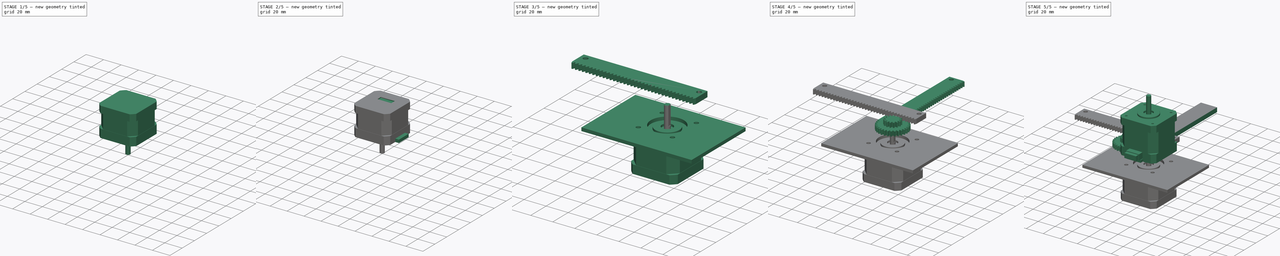
[diagram: build sequence overview — one tinted view per stage of 5, left to right]
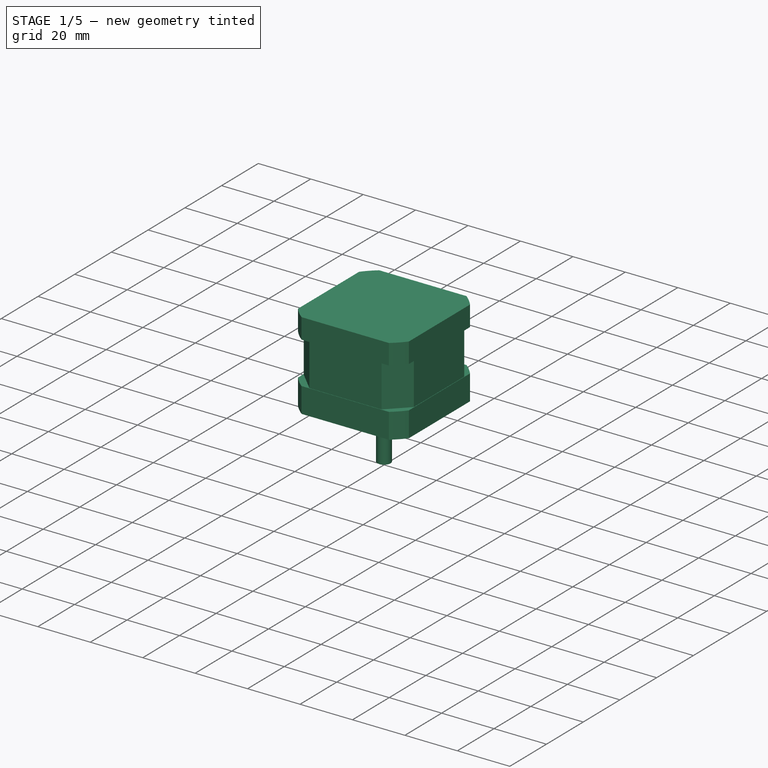
[diagram: stage 1 of 5 — iso view after this stage's code; geometry added in this stage tinted green]
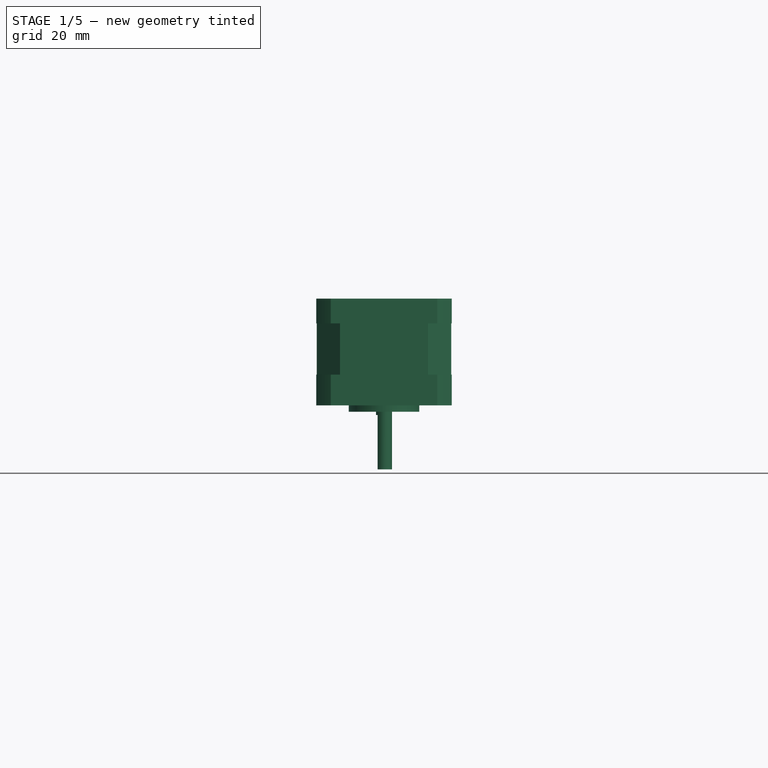
[diagram: stage 1 of 5 — front view after this stage's code; geometry added in this stage tinted green]
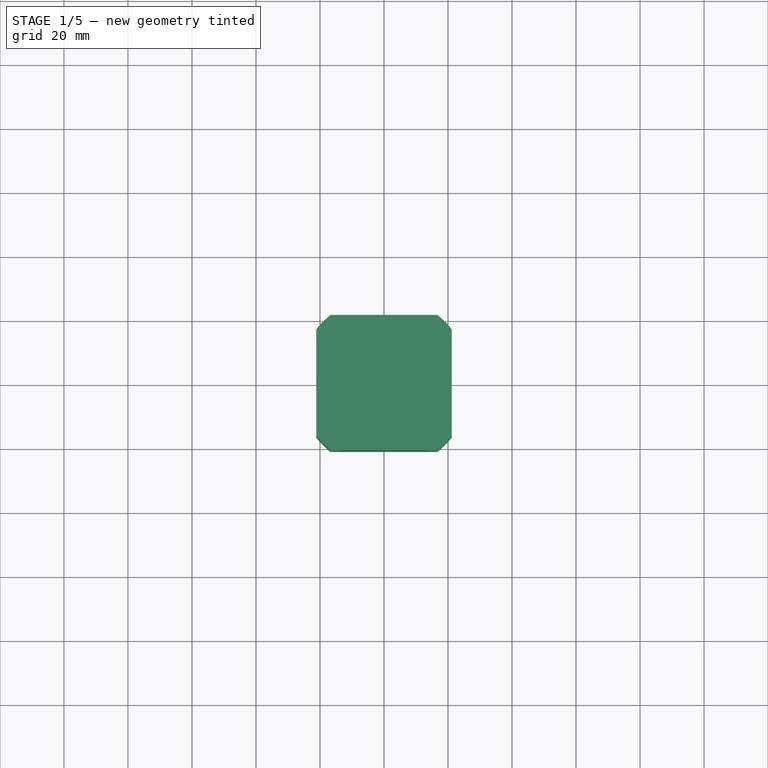
[diagram: stage 1 of 5 — top view after this stage's code; geometry added in this stage tinted green]
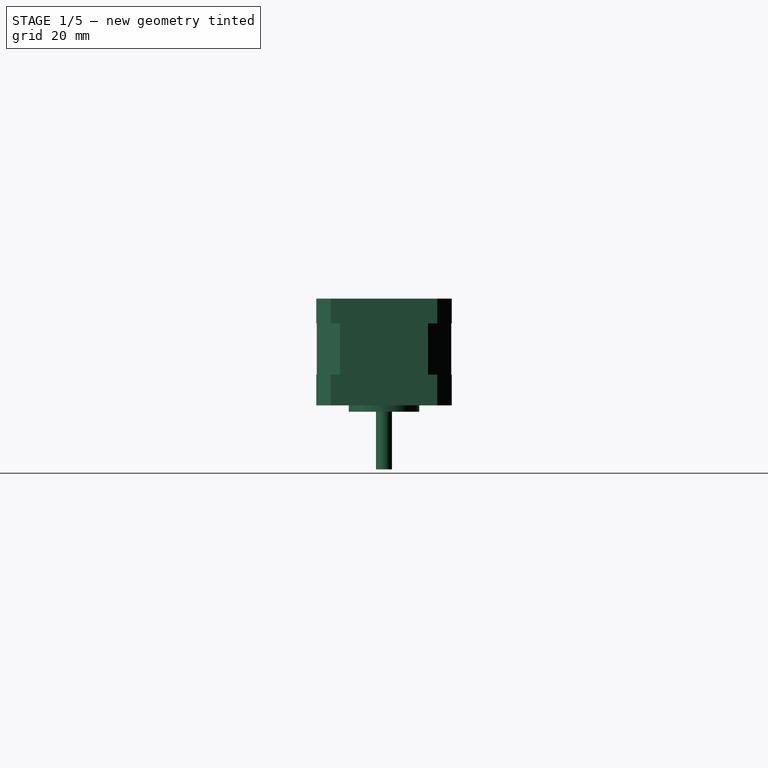
[diagram: stage 1 of 5 — right view after this stage's code; geometry added in this stage tinted green]
FCSTD DOCUMENT  (FreeCAD 0.18.4R)
Label: gears
License: All rights reserved
LicenseURL: http://en.wikipedia.org/wiki/All_rights_reserved
objects: Sketcher::SketchObject×13, Part::FeaturePython×9, PartDesign::Pad×8, Path::FeaturePython×8, Part::Cut×6, PartDesign::Body×6, PartDesign::Pocket×5, Part::Cylinder×4, Part::MultiFuse×4, App::DocumentObjectGroup×3, Part::Feature×2, App::FeaturePython×2, Path::FeatureCompoundPython×2, App::Part×2, Part::Compound×1, Part::Box×1, Part::Chamfer×1, PartDesign::FeatureBase×1
note: 76 computed .brp shape members not serialized (recipe doc carries the construction recipe); baked Part::Feature solids carry a one-line shape summary decoded from their .brp

FEATURE [Sketcher::SketchObject] Sketch  label="bottom-part-sketch"
  MapMode = 5
  Support = -> [XY_Plane003]
  sketch-geometry (8):
    g0: LineSegment StartX=-16.65 StartY=-21.15 StartZ=0 EndX=16.65 EndY=-21.15 EndZ=0
    g1: LineSegment StartX=21.15 StartY=-16.65 StartZ=0 EndX=21.15 EndY=16.65 EndZ=0
    g2: LineSegment StartX=16.65 StartY=21.15 StartZ=0 EndX=-16.65 EndY=21.15 EndZ=0
    g3: LineSegment StartX=-21.15 StartY=16.65 StartZ=0 EndX=-21.15 EndY=-16.65 EndZ=0
    g4: ArcOfCircle CenterX=0 CenterY=0 CenterZ=0 NormalX=0 NormalY=0 NormalZ=1 AngleXU=0 Radius=26.9174 StartAngle=2.2377 EndAngle=2.47468
    g5: ArcOfCircle CenterX=0 CenterY=0 CenterZ=0 NormalX=0 NormalY=0 NormalZ=1 AngleXU=0 Radius=26.9174 StartAngle=3.8085 EndAngle=4.04548
    g6: ArcOfCircle CenterX=0 CenterY=0 CenterZ=0 NormalX=0 NormalY=0 NormalZ=1 AngleXU=0 Radius=26.9174 StartAngle=5.3793 EndAngle=5.61628
    g7: ArcOfCircle CenterX=0 CenterY=0 CenterZ=0 NormalX=0 NormalY=0 NormalZ=1 AngleXU=0 Radius=26.9174 StartAngle=0.666908 EndAngle=0.903888
  constraints (29):
    c: Horizontal(g0)
    c: Horizontal(g2)
    c: Vertical(g1)
    c: Vertical(g3)
    c: PointOnObject(g0,g4)
    c: PointOnObject(g0,g4)
    c: PointOnObject(g1,g4)
    c: PointOnObject(g1,g4)
    c: Coincident(g4,g2)
    c: Coincident(g7,g2)
    c: Equal(g4,g5)
    c: Coincident(g4,g3)
    c: Coincident(g5,g3)
    c: Coincident(g4,g5)
    c: Equal(g5,g6)
    c: PointOnObject(g5,g0)
    c: PointOnObject(g6,g0)
    c: Coincident(g5,g6)
    c: Equal(g6,g7)
    c: PointOnObject(g6,g1)
    c: PointOnObject(g7,g1)
    c: Coincident(g6,g7)
    c: Equal(g3,g2)
    c: Equal(g2,g1)
    c: Equal(g1,g0)
    c: DistanceX(g3,g1) = 42.3
    c: DistanceX(g2) = -33.3
    c: DistanceY(g2) = 21.15
    c: DistanceX(g1) = 21.15
FEATURE [PartDesign::Pad] Pad  label="bottom-slice"
  Length = 9.6
  Length2 = 100
  Profile = -> Sketch
  Type = 0
FEATURE [Sketcher::SketchObject] Sketch001  label="middle-part-sketch"
  ExternalGeometry = -> [Pad]
  MapMode = 5
  Placement = pos=(0,0,9.6) rot=(0,0,1;0rad)
  Support = -> [Pad]
  sketch-geometry (9):
    g0: LineSegment StartX=-21 StartY=-13.75 StartZ=0 EndX=-21 EndY=13.75 EndZ=0
    g1: LineSegment StartX=-21 StartY=13.75 StartZ=0 EndX=-13.75 EndY=21 EndZ=0
    g2: LineSegment StartX=-13.75 StartY=21 StartZ=0 EndX=13.75 EndY=21 EndZ=0
    g3: LineSegment [constr] StartX=-21 StartY=13.75 StartZ=0 EndX=-9 EndY=13.75 EndZ=0
    g4: LineSegment StartX=13.75 StartY=21 StartZ=0 EndX=21 EndY=13.75 EndZ=0
    g5: LineSegment StartX=21 StartY=13.75 StartZ=0 EndX=21 EndY=-13.75 EndZ=0
    g6: LineSegment StartX=21 StartY=-13.75 StartZ=0 EndX=13.75 EndY=-21 EndZ=0
    g7: LineSegment StartX=13.75 StartY=-21 StartZ=0 EndX=-13.75 EndY=-21 EndZ=0
    g8: LineSegment StartX=-13.75 StartY=-21 StartZ=0 EndX=-21 EndY=-13.75 EndZ=0
  constraints (24):
    c: Coincident(g0,g1)
    c: Coincident(g1,g2)
    c: Horizontal(g2)
    c: Symmetric(g0,g0,g-1)
    c: Symmetric(g1,g2,g-2)
    c: Horizontal(g3)
    c: Coincident(g3,g0)
    c: DistanceX(g3) = 12
    c: Angle(g3,g1) = 0.785398
    c: DistanceY(g0) = 27.5
    c: Coincident(g4,g5)
    c: Vertical(g5)
    c: Coincident(g5,g6)
    c: Coincident(g6,g7)
    c: Horizontal(g7)
    c: Coincident(g7,g8)
    c: Coincident(g8,g0)
    c: Symmetric(g1,g7,g-1)
    c: Coincident(g4,g2)
    c: Symmetric(g4,g0,g-2)
    c: Symmetric(g0,g5,g-2)
    c: Symmetric(g6,g7,g-2)
    c: DistanceX(g-1,g0) = -21
    c: Equal(g0,g2)
FEATURE [PartDesign::Pad] Pad001  label="middle-slice"
  BaseFeature = -> Pad
  Length = 16
  Length2 = 100
  Profile = -> Sketch001
  Type = 0
FEATURE [Sketcher::SketchObject] Sketch002  label="top-part-sketch"
  MapMode = 5
  Placement = pos=(0,0,25.6) rot=(0,0,1;0rad)
  Support = -> [Pad001]
  sketch-geometry (8):
    g0: LineSegment StartX=-16.65 StartY=-21.15 StartZ=0 EndX=16.65 EndY=-21.15 EndZ=0
    g1: LineSegment StartX=21.15 StartY=-16.65 StartZ=0 EndX=21.15 EndY=16.65 EndZ=0
    g2: LineSegment StartX=16.65 StartY=21.15 StartZ=0 EndX=-16.65 EndY=21.15 EndZ=0
    g3: LineSegment StartX=-21.15 StartY=16.65 StartZ=0 EndX=-21.15 EndY=-16.65 EndZ=0
    g4: ArcOfCircle CenterX=0 CenterY=0 CenterZ=0 NormalX=0 NormalY=0 NormalZ=1 AngleXU=0 Radius=26.9174 StartAngle=2.2377 EndAngle=2.47468
    g5: ArcOfCircle CenterX=0 CenterY=0 CenterZ=0 NormalX=0 NormalY=0 NormalZ=1 AngleXU=0 Radius=26.9174 StartAngle=3.8085 EndAngle=4.04548
    g6: ArcOfCircle CenterX=0 CenterY=0 CenterZ=0 NormalX=0 NormalY=0 NormalZ=1 AngleXU=0 Radius=26.9174 StartAngle=5.3793 EndAngle=5.61628
    g7: ArcOfCircle CenterX=0 CenterY=0 CenterZ=0 NormalX=0 NormalY=0 NormalZ=1 AngleXU=0 Radius=26.9174 StartAngle=0.666908 EndAngle=0.903888
  constraints (29):
    c: Horizontal(g0)
    c: Horizontal(g2)
    c: Vertical(g1)
    c: Vertical(g3)
    c: PointOnObject(g0,g4)
    c: PointOnObject(g0,g4)
    c: PointOnObject(g1,g4)
    c: PointOnObject(g1,g4)
    c: Coincident(g4,g2)
    c: Coincident(g7,g2)
    c: Equal(g4,g5)
    c: Coincident(g4,g3)
    c: Coincident(g5,g3)
    c: Coincident(g4,g5)
    c: Equal(g5,g6)
    c: PointOnObject(g5,g0)
    c: PointOnObject(g6,g0)
    c: Coincident(g5,g6)
    c: Equal(g6,g7)
    c: PointOnObject(g6,g1)
    c: PointOnObject(g7,g1)
    c: Coincident(g6,g7)
    c: Equal(g3,g2)
    c: Equal(g2,g1)
    c: Equal(g1,g0)
    c: DistanceX(g3,g1) = 42.3
    c: DistanceX(g2) = -33.3
    c: DistanceY(g2) = 21.15
    c: DistanceX(g1) = 21.15
FEATURE [PartDesign::Pad] Pad002  label="top-slice"
  BaseFeature = -> Pad001
  Length = 7.75
  Length2 = 100
  Profile = -> Sketch002
  Type = 0
FEATURE [Sketcher::SketchObject] Sketch003  label="top-drills-sketch"
  MapMode = 5
  Placement = pos=(0,0,0) rot=(1,0,0;3.14159rad)
  Support = -> [Pad002]
  sketch-geometry (6):
    g0: LineSegment [constr] StartX=-15.5 StartY=15.5 StartZ=0 EndX=15.5 EndY=15.5 EndZ=0
    g1: LineSegment [constr] StartX=-15.5 StartY=15.5 StartZ=0 EndX=-15.5 EndY=-15.5 EndZ=0
    g2: Circle CenterX=-15.5 CenterY=15.5 CenterZ=0 NormalX=0 NormalY=0 NormalZ=1 AngleXU=0 Radius=1.225
    g3: Circle CenterX=15.5 CenterY=15.5 CenterZ=0 NormalX=0 NormalY=0 NormalZ=1 AngleXU=0 Radius=1.225
    g4: Circle CenterX=15.5 CenterY=-15.5 CenterZ=0 NormalX=0 NormalY=0 NormalZ=1 AngleXU=0 Radius=1.225
    g5: Circle CenterX=-15.5 CenterY=-15.5 CenterZ=0 NormalX=0 NormalY=0 NormalZ=1 AngleXU=0 Radius=1.225
  constraints (15):
    c: Horizontal(g0)
    c: Symmetric(g0,g0,g-2)
    c: Vertical(g1)
    c: Symmetric(g1,g1,g-1)
    c: Equal(g0,g1)
    c: DistanceX(g0) = 31
    c: Coincident(g1,g0)
    c: Radius(g2) = 1.225
    c: Coincident(g2,g0)
    c: Equal(g5,g4)
    c: Equal(g4,g3)
    c: Equal(g3,g2)
    c: Coincident(g3,g0)
    c: Coincident(g5,g1)
    c: Symmetric(g4,g1,g-2)
FEATURE [PartDesign::Pocket] Pocket  label="top-drills"
  BaseFeature = -> Pad002
  Length = 4.5
  Length2 = 100
  Profile = -> Sketch003
  Type = 0
FEATURE [Sketcher::SketchObject] Sketch004  label="shaft-base-sketch"
  MapMode = 5
  Placement = pos=(0,0,0) rot=(1,0,0;3.14159rad)
  Support = -> [Pocket]
  sketch-geometry (2):
    g0: Circle CenterX=0 CenterY=0 CenterZ=0 NormalX=0 NormalY=0 NormalZ=1 AngleXU=0 Radius=11
    g1: Circle CenterX=0 CenterY=0 CenterZ=0 NormalX=0 NormalY=0 NormalZ=1 AngleXU=0 Radius=5
  constraints (4):
    c: Coincident(g0,g-1)
    c: Radius(g0) = 11
    c: Coincident(g1,g-1)
    c: Radius(g1) = 5
FEATURE [PartDesign::Pad] Pad003  label="shaft-base"
  BaseFeature = -> Pocket
  Length = 2
  Length2 = 100
  Profile = -> Sketch004
  Type = 0
FEATURE [Sketcher::SketchObject] Sketch005  label="shaft-1-sketch"
  MapMode = 5
  Placement = pos=(0,0,0) rot=(1,0,0;3.14159rad)
  Support = -> [Pad003]
  sketch-geometry (1):
    g0: Circle CenterX=0 CenterY=0 CenterZ=0 NormalX=0 NormalY=0 NormalZ=1 AngleXU=0 Radius=2.5
  constraints (2):
    c: Coincident(g0,g-1)
    c: Radius(g0) = 2.5
FEATURE [PartDesign::Pad] Pad004  label="shaft-1"
  BaseFeature = -> Pad003
  Length = 20
  Length2 = 100
  Profile = -> Sketch005
  Type = 0
FEATURE [Sketcher::SketchObject] Sketch006  label="shaft-2-sketch"
  ExternalGeometry = -> [Pad004]
  MapMode = 5
  Placement = pos=(0,0,-20) rot=(1,0,0;3.14159rad)
  Support = -> [Pad004]
  sketch-geometry (4):
    g0: LineSegment StartX=-2 StartY=1.5 StartZ=0 EndX=-2 EndY=-1.5 EndZ=0
    g1: LineSegment StartX=-2 StartY=1.5 StartZ=0 EndX=-2.5 EndY=1.5 EndZ=0
    g2: LineSegment StartX=-2.5 StartY=1.5 StartZ=0 EndX=-2.5 EndY=-1.5 EndZ=0
    g3: LineSegment StartX=-2.5 StartY=-1.5 StartZ=0 EndX=-2 EndY=-1.5 EndZ=0
  constraints (11):
    c: Symmetric(g0,g0,g-1)
    c: PointOnObject(g0,g-3)
    c: Coincident(g1,g2)
    c: Coincident(g2,g3)
    c: Horizontal(g3)
    c: Horizontal(g1)
    c: Coincident(g1,g0)
    c: Coincident(g0,g3)
    c: Vertical(g2)
    c: Tangent(g2,g-3)
    c: DistanceX(g1) = -0.5
FEATURE [PartDesign::Pocket] Pocket001  label="shaft-2"
  BaseFeature = -> Pad004
  Length = 17
  Length2 = 100
  Profile = -> Sketch006
  Type = 0
FEATURE [Sketcher::SketchObject] Sketch007  label="bottom-drills-sketch"
  MapMode = 5
  Placement = pos=(0,0,25.6) rot=(1,0,0;3.14159rad)
  Support = -> [Pocket001]
  sketch-geometry (7):
    g0: LineSegment [constr] StartX=-15.5 StartY=15.5 StartZ=0 EndX=15.5 EndY=15.5 EndZ=0
    g1: LineSegment [constr] StartX=-15.5 StartY=15.5 StartZ=0 EndX=-15.5 EndY=-15.5 EndZ=0
    g2: Circle CenterX=-15.5 CenterY=15.5 CenterZ=0 NormalX=0 NormalY=0 NormalZ=1 AngleXU=0 Radius=1.5
    g3: Circle CenterX=15.5 CenterY=15.5 CenterZ=0 NormalX=0 NormalY=0 NormalZ=1 AngleXU=0 Radius=1.5
    g4: Circle CenterX=15.5 CenterY=-15.5 CenterZ=0 NormalX=0 NormalY=0 NormalZ=1 AngleXU=0 Radius=1.5
    g5: Circle CenterX=-15.5 CenterY=-15.5 CenterZ=0 NormalX=0 NormalY=0 NormalZ=1 AngleXU=0 Radius=1.5
    g6: Circle CenterX=0 CenterY=0 CenterZ=0 NormalX=0 NormalY=0 NormalZ=1 AngleXU=0 Radius=4.5
  constraints (17):
    c: Horizontal(g0)
    c: Vertical(g1)
    c: Coincident(g1,g0)
    c: Symmetric(g0,g0,g-2)
    c: Symmetric(g0,g1,g-1)
    c: Equal(g1,g0)
    c: DistanceX(g0) = 31
    c: Coincident(g2,g0)
    c: Radius(g2) = 1.5
    c: Coincident(g5,g1)
    c: Coincident(g0,g3)
    c: Equal(g3,g2)
    c: Equal(g2,g5)
    c: Equal(g5,g4)
    c: Symmetric(g4,g1,g-2)
    c: Coincident(g6,g-1)
    c: Radius(g6) = 4.5
FEATURE [PartDesign::Pocket] Pocket002  label="bottom-drills"
  BaseFeature = -> Pocket001
  Length = 3
  Length2 = 100
  Profile = -> Sketch007
  Type = 0
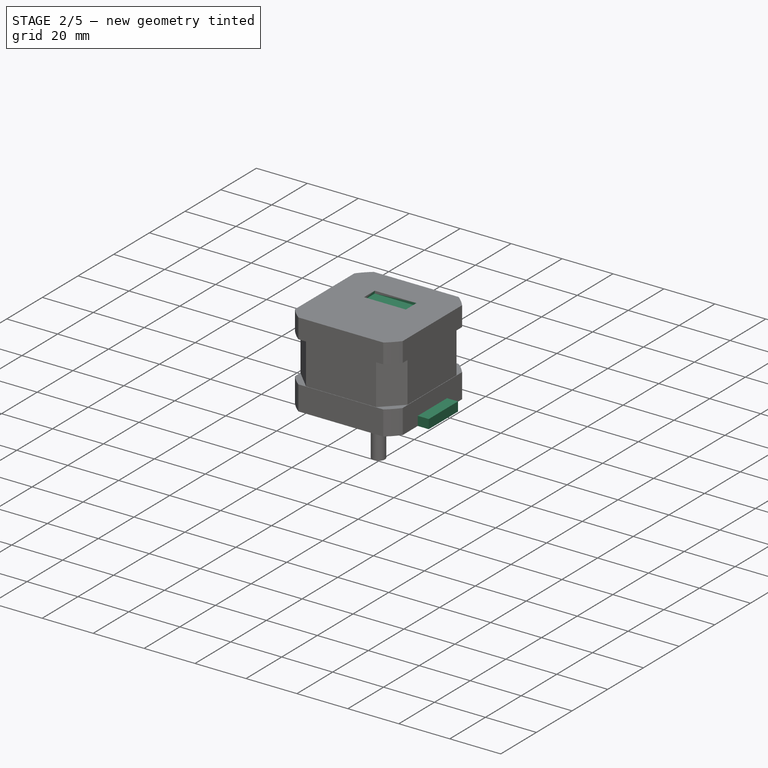
[diagram: stage 2 of 5 — iso view after this stage's code; geometry added in this stage tinted green]
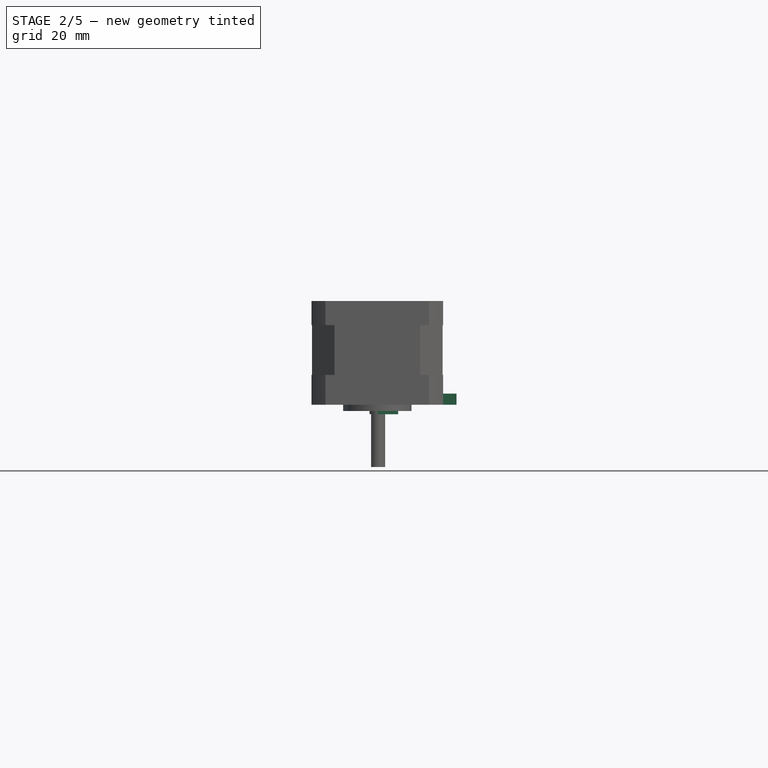
[diagram: stage 2 of 5 — front view after this stage's code; geometry added in this stage tinted green]
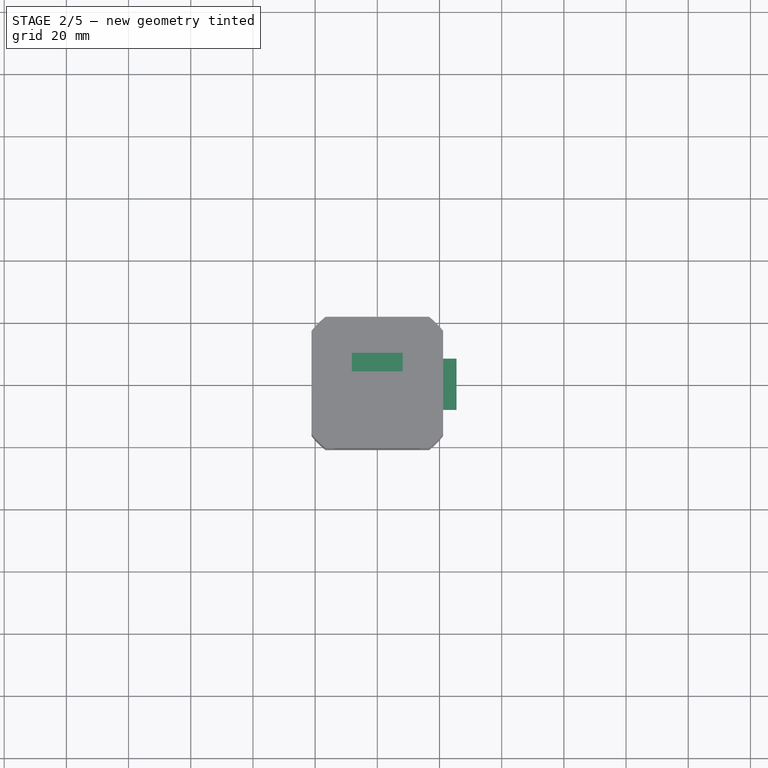
[diagram: stage 2 of 5 — top view after this stage's code; geometry added in this stage tinted green]
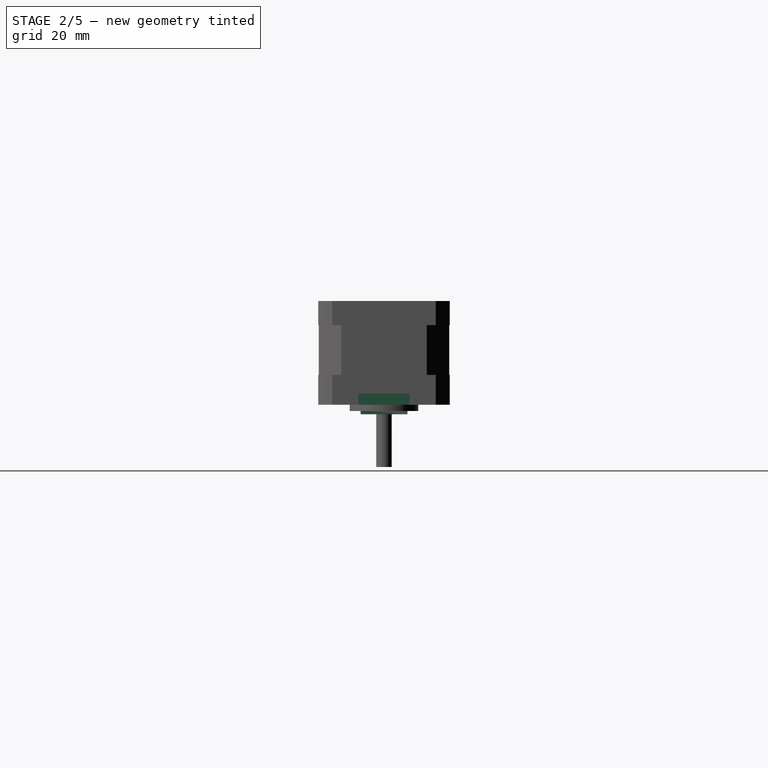
[diagram: stage 2 of 5 — right view after this stage's code; geometry added in this stage tinted green]
FEATURE [Sketcher::SketchObject] Sketch010  label="connector-main-body-sketch"
  MapMode = 5
  Placement = pos=(0,0,0) rot=(0.57735,0.57735,0.57735;2.0944rad)
  Support = -> [YZ_Plane002]
  sketch-geometry (4):
    g0: LineSegment StartX=-7.5 StartY=3.05 StartZ=0 EndX=7.5 EndY=3.05 EndZ=0
    g1: LineSegment StartX=7.5 StartY=3.05 StartZ=0 EndX=7.5 EndY=-3.05 EndZ=0
    g2: LineSegment StartX=7.5 StartY=-3.05 StartZ=0 EndX=-7.5 EndY=-3.05 EndZ=0
    g3: LineSegment StartX=-7.5 StartY=-3.05 StartZ=0 EndX=-7.5 EndY=3.05 EndZ=0
  constraints (11):
    c: Coincident(g0,g1)
    c: Coincident(g1,g2)
    c: Coincident(g2,g3)
    c: Coincident(g3,g0)
    c: Horizontal(g0)
    c: Horizontal(g2)
    c: Vertical(g1)
    c: Vertical(g3)
    c: Symmetric(g0,g1,g-1)
    c: DistanceX(g0) = 15
    c: DistanceY(g1) = -6.1
FEATURE [PartDesign::Pad] Pad006  label="connector-main-body"
  Length = 6.7
  Length2 = 100
  Placement = pos=(0,0,0) rot=(0.57735,0.57735,0.57735;2.0944rad)
  Profile = -> Sketch010
  Type = 0
FEATURE [Sketcher::SketchObject] Sketch011  label="connector-cutout-1-sketch"
  MapMode = 5
  Placement = pos=(6.7,-1.5e-15,1.5e-15) rot=(0.57735,0.57735,0.57735;2.0944rad)
  Support = -> [Pad006]
  sketch-geometry (8):
    g0: LineSegment StartX=-6.5 StartY=1.85 StartZ=0 EndX=-3.22738 EndY=1.85 EndZ=0
    g1: LineSegment StartX=6.5 StartY=1.85 StartZ=0 EndX=6.5 EndY=-1.85 EndZ=0
    g2: LineSegment StartX=6.5 StartY=-1.85 StartZ=0 EndX=-6.5 EndY=-1.85 EndZ=0
    g3: LineSegment StartX=-6.5 StartY=-1.85 StartZ=0 EndX=-6.5 EndY=1.85 EndZ=0
    g4: LineSegment StartX=-3.22738 StartY=1.85 StartZ=0 EndX=-3.22738 EndY=3.85 EndZ=0
    g5: LineSegment StartX=-3.22738 StartY=3.85 StartZ=0 EndX=3.22738 EndY=3.85 EndZ=0
    g6: LineSegment StartX=3.22738 StartY=3.85 StartZ=0 EndX=3.22738 EndY=1.85 EndZ=0
    g7: LineSegment StartX=3.22738 StartY=1.85 StartZ=0 EndX=6.5 EndY=1.85 EndZ=0
  constraints (21):
    c: Coincident(g7,g1)
    c: Coincident(g1,g2)
    c: Coincident(g2,g3)
    c: Coincident(g3,g0)
    c: Horizontal(g0)
    c: Horizontal(g2)
    c: Vertical(g1)
    c: Vertical(g3)
    c: Symmetric(g0,g1,g-1)
    c: DistanceX(g2) = -13
    c: DistanceY(g1) = -3.7
    c: Vertical(g4)
    c: Coincident(g4,g5)
    c: Horizontal(g5)
    c: Coincident(g5,g6)
    c: Vertical(g6)
    c: Symmetric(g4,g5,g-2)
    c: Coincident(g0,g4)
    c: Coincident(g7,g6)
    c: Tangent(g0,g7)
    c: DistanceY(g6) = -2
FEATURE [PartDesign::Pocket] Pocket004  label="connector-cutout-1"
  BaseFeature = -> Pad006
  Length = 4.6
  Length2 = 100
  Placement = pos=(0,0,0) rot=(0.57735,0.57735,0.57735;2.0944rad)
  Profile = -> Sketch011
  Type = 0
FEATURE [Part::Box] Box  label="pin-master"
  AttacherType = Attacher::AttachEngine3D
  Height = 0.5
  Length = 4
  Width = 0.5
FEATURE [Part::FeaturePython] Array  label="pins"  # Draft array (typed FeaturePython)
  Angle = 360
  ArrayType = 0
  Axis = (0,0,1)
  Base = -> Box
  Center = (0,0,0)
  IntervalX = (1,0,0)
  IntervalY = (0,2,0)
  IntervalZ = (0,0,1)
  NumberPolar = 1
  NumberX = 1
  NumberY = 6
  NumberZ = 1
  Placement = pos=(2,-5.3,0) rot=(0,0,1;0rad)
FEATURE [PartDesign::Body] Pocket002Body
  Group = -> [Sketch,Pad,Sketch001,Pad001,Sketch002,Pad002,Sketch003,Pocket,Sketch004,Pad003,Sketch005,Pad004,Sketch006,Pocket001,Sketch007,Pocket002]
  Origin = -> Origin003
  Tip = -> Pocket002
FEATURE [Part::Chamfer] Chamfer  label="motor-no-connector"
  Base = -> Pocket002Body
  Edges = 1 edges r=0.4: [Edge102]
FEATURE [Sketcher::SketchObject] Sketch008  label="connector-support-sketch"
  ExternalGeometry = -> [Chamfer]
  MapMode = 5
  Placement = pos=(0,0,0) rot=(1,0,0;3.14159rad)
  Support = -> [Chamfer]
  sketch-geometry (4):
    g0: LineSegment StartX=21.15 StartY=8.2 StartZ=0 EndX=25.45 EndY=8.2 EndZ=0
    g1: LineSegment StartX=25.45 StartY=8.2 StartZ=0 EndX=25.45 EndY=-8.2 EndZ=0
    g2: LineSegment StartX=25.45 StartY=-8.2 StartZ=0 EndX=21.15 EndY=-8.2 EndZ=0
    g3: LineSegment StartX=21.15 StartY=-8.2 StartZ=0 EndX=21.15 EndY=8.2 EndZ=0
  constraints (12):
    c: Coincident(g0,g1)
    c: Coincident(g1,g2)
    c: Coincident(g2,g3)
    c: Coincident(g3,g0)
    c: Horizontal(g0)
    c: Horizontal(g2)
    c: Vertical(g1)
    c: Vertical(g3)
    c: Symmetric(g0,g2,g-1)
    c: PointOnObject(g0,g-3)
    c: DistanceY(g1) = -16.4
    c: DistanceX(g0) = 4.3
FEATURE [PartDesign::FeatureBase] BaseFeature
  BaseFeature = -> Chamfer
FEATURE [PartDesign::Pad] Pad005  label="connector-motor"
  BaseFeature = -> BaseFeature
  Length = 3.6
  Length2 = 100
  Profile = -> Sketch008
  Reversed = true
  Type = 0
FEATURE [Sketcher::SketchObject] Sketch009  label="connector-slot-sketch"
  ExternalGeometry = -> [Pad005]
  MapMode = 5
  Placement = pos=(0,0,33.35) rot=(0,0,1;0rad)
  Support = -> [Pad005]
  sketch-geometry (4):
    g0: LineSegment StartX=-8.2 StartY=9.6 StartZ=0 EndX=8.2 EndY=9.6 EndZ=0
    g1: LineSegment StartX=8.2 StartY=9.6 StartZ=0 EndX=8.2 EndY=3.6 EndZ=0
    g2: LineSegment StartX=8.2 StartY=3.6 StartZ=0 EndX=-8.2 EndY=3.6 EndZ=0
    g3: LineSegment StartX=-8.2 StartY=3.6 StartZ=0 EndX=-8.2 EndY=9.6 EndZ=0
  constraints (11):
    c: Coincident(g0,g1)
    c: Coincident(g1,g2)
    c: Coincident(g2,g3)
    c: Coincident(g3,g0)
    c: Horizontal(g0)
    c: Horizontal(g2)
    c: Vertical(g1)
    c: Vertical(g3)
    c: Coincident(g2,g-3)
    c: Coincident(g1,g-3)
    c: PointOnObject(g0,g-4)
FEATURE [PartDesign::Pocket] Pocket003  label="connector-slot"
  BaseFeature = -> Pad005
  Length = 1
  Length2 = 100
  Profile = -> Sketch009
  Type = 0
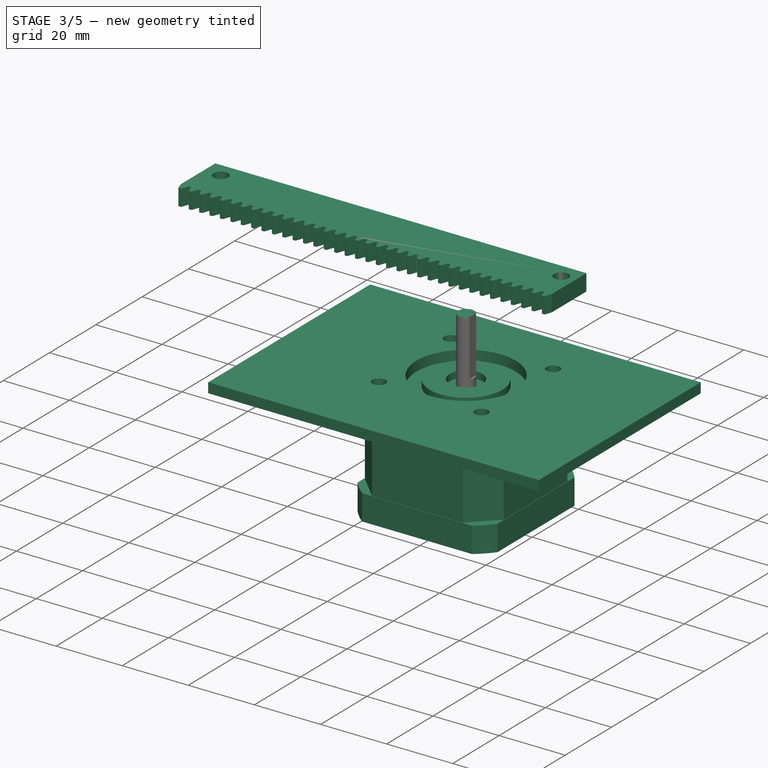
[diagram: stage 3 of 5 — iso view after this stage's code; geometry added in this stage tinted green]
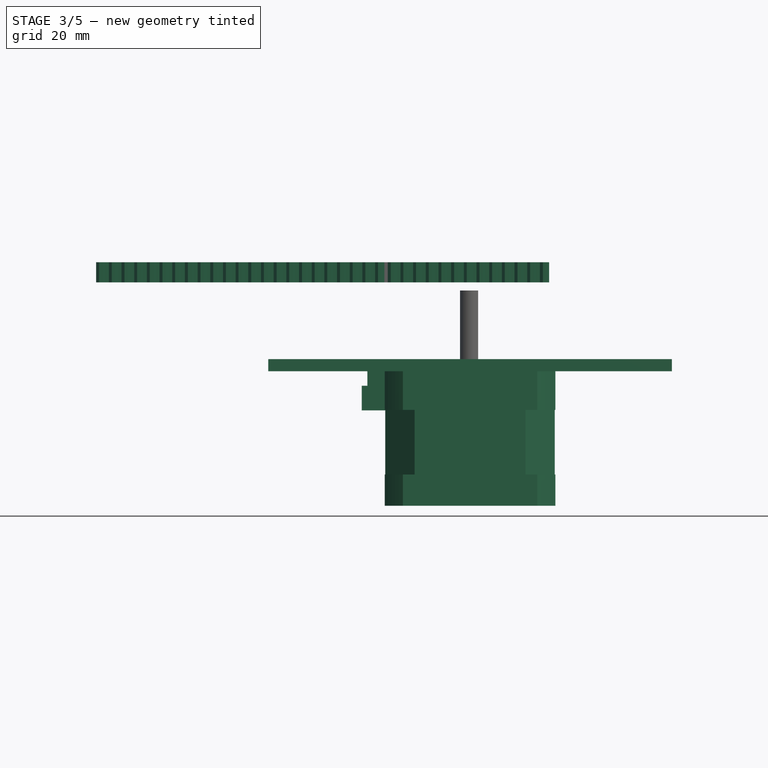
[diagram: stage 3 of 5 — front view after this stage's code; geometry added in this stage tinted green]
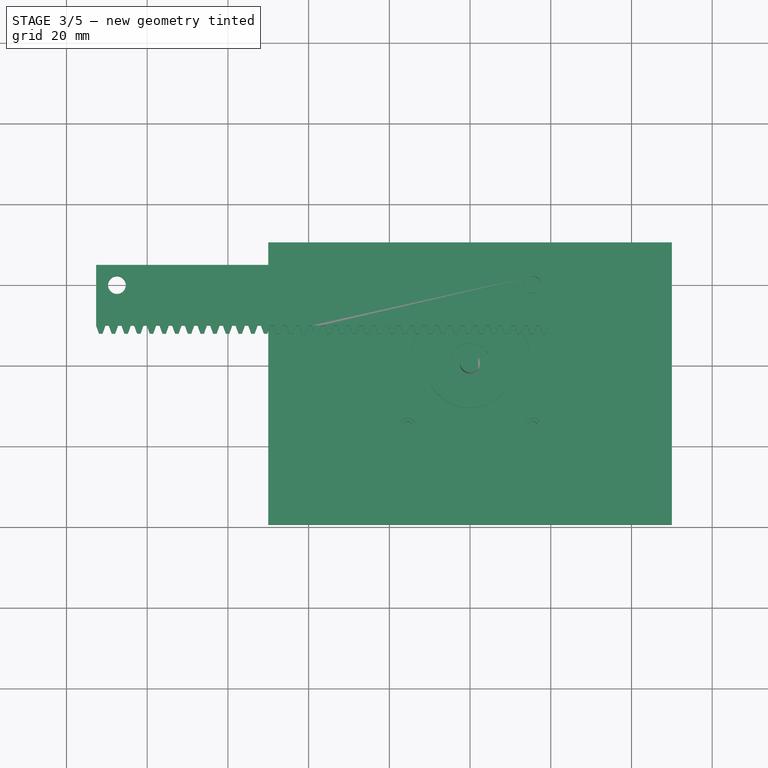
[diagram: stage 3 of 5 — top view after this stage's code; geometry added in this stage tinted green]
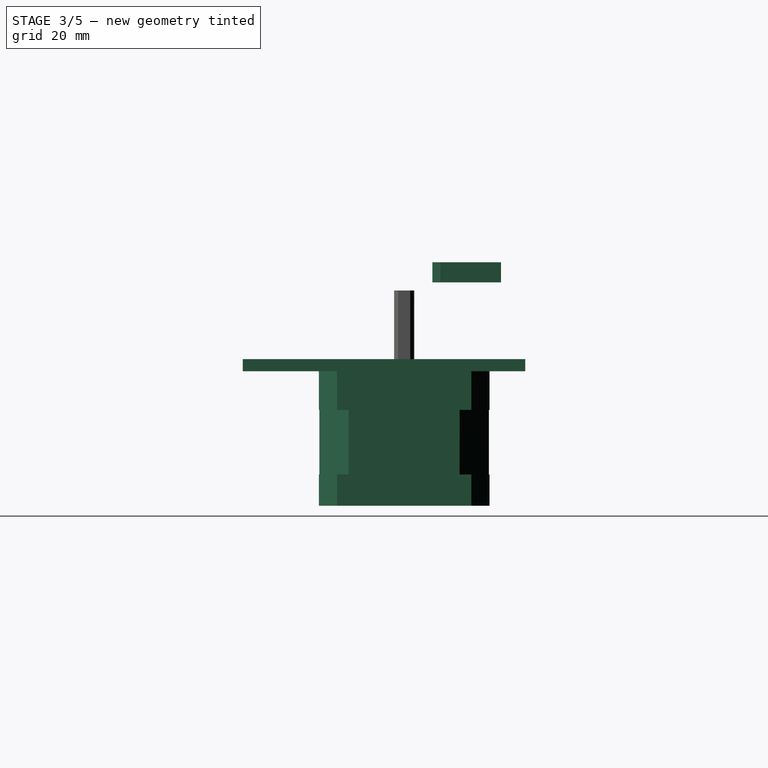
[diagram: stage 3 of 5 — right view after this stage's code; geometry added in this stage tinted green]
FEATURE [Part::Feature] Fusion001005  label="Motor-with-connector-final001"
  Placement = pos=(0,0,-53) rot=(0,0,1;0rad)
  shape: bbox 48 x 42.3 x 60.1 mm, 110 faces (baked)
FEATURE [Part::FeaturePython] InvoluteRack  # WARN: FeaturePython — macro-defined, semantics opaque (R4)
  beta = 0
  double_helix = true
  head = 0
  height = 5
  module = 1
  pressure_angle = 20
  teeth = 36
  thickness = 15
FEATURE [Part::Cylinder] Cylinder002
  Angle = 360
  AttacherType = Attacher::AttachEngine3D
  Height = 10
  Placement = pos=(-11,107,0) rot=(0,0,1;0rad)
  Radius = 2.2
FEATURE [Part::Cylinder] Cylinder003
  Angle = 360
  AttacherType = Attacher::AttachEngine3D
  Height = 10
  Placement = pos=(-11,4,0) rot=(0,0,1;0rad)
  Radius = 2.2
FEATURE [Part::Cut] Cut003
  Base = -> InvoluteRack
  Tool = -> Cylinder002
FEATURE [Part::Cut] Cut005  label="gears line other side"
  Base = -> Cut003
  Placement = pos=(-91.5,8,7) rot=(0,0,-1;1.5708rad)
  Tool = -> Cylinder003
FEATURE [PartDesign::Body] Pocket004Body
  Group = -> [Sketch010,Pad006,Sketch011,Pocket004]
  Origin = -> Origin002
  Tip = -> Pocket004
FEATURE [Part::MultiFuse] Fusion  label="connector"
  Placement = pos=(20.15,9e-16,6.65) rot=(0,0,1;0rad)
  Shapes = -> [Pocket004Body,Array]
FEATURE [PartDesign::Body] Pocket003Body
  BaseFeature = -> Chamfer
  Group = -> [BaseFeature,Sketch008,Pad005,Sketch009,Pocket003]
  Origin = -> Origin004
  Tip = -> Pocket003
FEATURE [Part::MultiFuse] Fusion001  label="Motor-with-connector"
  Placement = pos=(4e-15,0,-15) rot=(0,1,0;3.14159rad)
  Shapes = -> [Pocket003Body,Fusion]
FEATURE [Sketcher::SketchObject] Sketch012
  MapMode = 5
  Placement = pos=(4e-15,0,-15) rot=(0,0,1;3.14159rad)
  Support = -> [Fusion001]
  sketch-geometry (9):
    g0: Circle CenterX=0 CenterY=0 CenterZ=0 NormalX=0 NormalY=0 NormalZ=1 AngleXU=0 Radius=15
    g1: LineSegment StartX=-50 StartY=40 StartZ=0 EndX=50 EndY=40 EndZ=0
    g2: LineSegment StartX=50 StartY=40 StartZ=0 EndX=50 EndY=-30 EndZ=0
    g3: LineSegment StartX=50 StartY=-30 StartZ=0 EndX=-50 EndY=-30 EndZ=0
    g4: LineSegment StartX=-50 StartY=-30 StartZ=0 EndX=-50 EndY=40 EndZ=0
    g5: Circle CenterX=-15.5 CenterY=15.5 CenterZ=0 NormalX=0 NormalY=0 NormalZ=1 AngleXU=0 Radius=2
    g6: Circle CenterX=15.5 CenterY=15.5 CenterZ=0 NormalX=0 NormalY=0 NormalZ=1 AngleXU=0 Radius=2
    g7: Circle CenterX=15.5 CenterY=-15.5 CenterZ=0 NormalX=0 NormalY=0 NormalZ=1 AngleXU=0 Radius=2
    g8: Circle CenterX=-15.5 CenterY=-15.5 CenterZ=0 NormalX=0 NormalY=0 NormalZ=1 AngleXU=0 Radius=2
  constraints (23):
    c: Coincident(g0,g-1)
    c: Radius(g0) = 15
    c: Coincident(g1,g2)
    c: Coincident(g2,g3)
    c: Coincident(g3,g4)
    c: Coincident(g4,g1)
    c: Horizontal(g1)
    c: Horizontal(g3)
    c: Vertical(g2)
    c: Vertical(g4)
    c: DistanceX(g1,g1) = 100
    c: DistanceY(g4,g4) = 70
    c: DistanceX(g3,g0) = 50
    c: DistanceY(g3,g0) = 30
    c: Equal(g7,g8)
    c: Equal(g8,g6)
    c: Equal(g6,g5)
    c: Radius(g7) = 2
    c: DistanceY(g7,g0) = 15.5
    c: DistanceX(g0,g7) = 15.5
    c: Symmetric(g6,g7,g-1)
    c: Symmetric(g6,g5,g-2)
    c: Symmetric(g5,g8,g-1)
FEATURE [PartDesign::Body] Body
  Origin = -> Origin005
FEATURE [PartDesign::Body] Body001
  Origin = -> Origin006
FEATURE [App::Part] Part001  label="motor part"
  Group = -> [Pocket004Body,Pocket002Body,Pocket003Body,Body,Body001]
  Origin = -> Origin001
FEATURE [PartDesign::Pad] Pad007
  Length = 3
  Length2 = 100
  Placement = pos=(4e-15,0,-15) rot=(0,1,0;3.14159rad)
  Profile = -> Sketch012
  Type = 0
FEATURE [PartDesign::Body] Body002
  Group = -> [Sketch012,Pad007]
  Origin = -> Origin007
  Tip = -> Pad007
FEATURE [App::Part] Part  label="holder plate"
  Group = -> [Body002]
  Origin = -> Origin
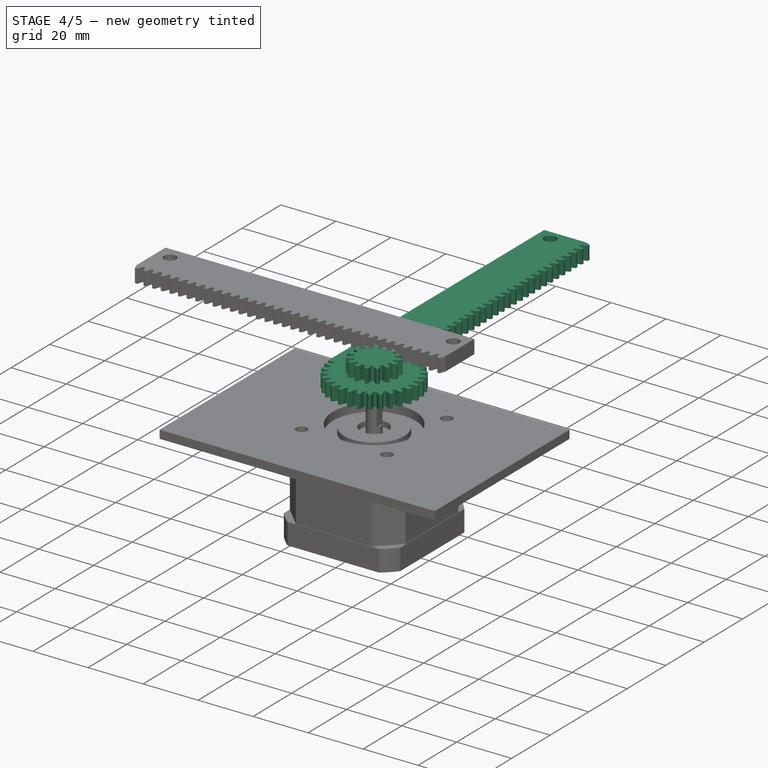
[diagram: stage 4 of 5 — iso view after this stage's code; geometry added in this stage tinted green]
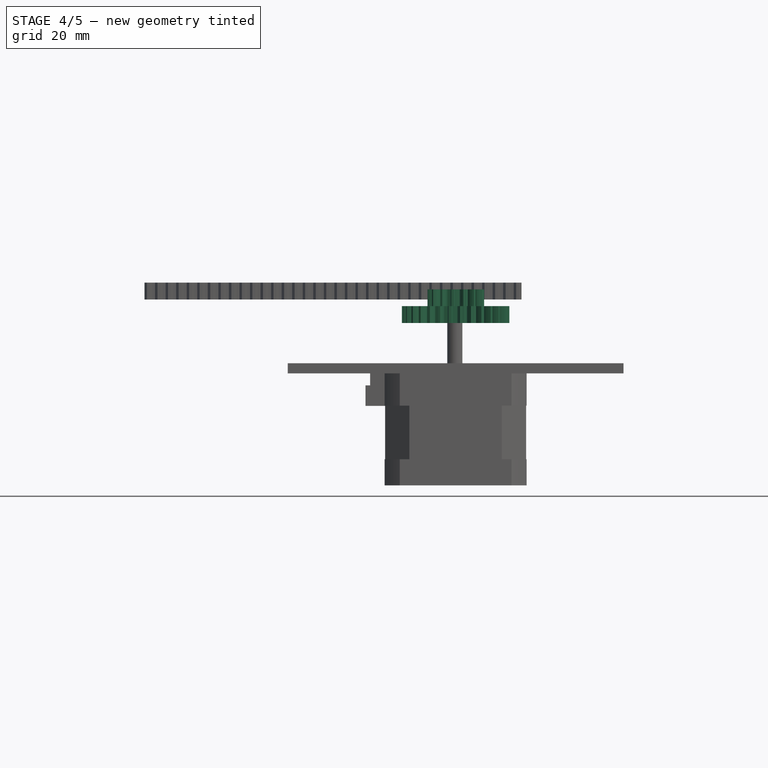
[diagram: stage 4 of 5 — front view after this stage's code; geometry added in this stage tinted green]
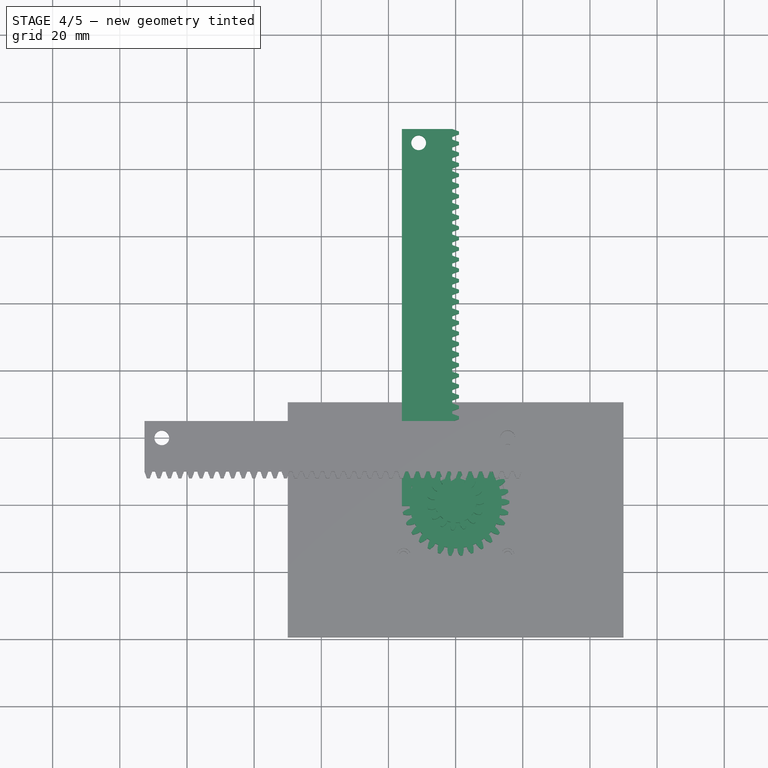
[diagram: stage 4 of 5 — top view after this stage's code; geometry added in this stage tinted green]
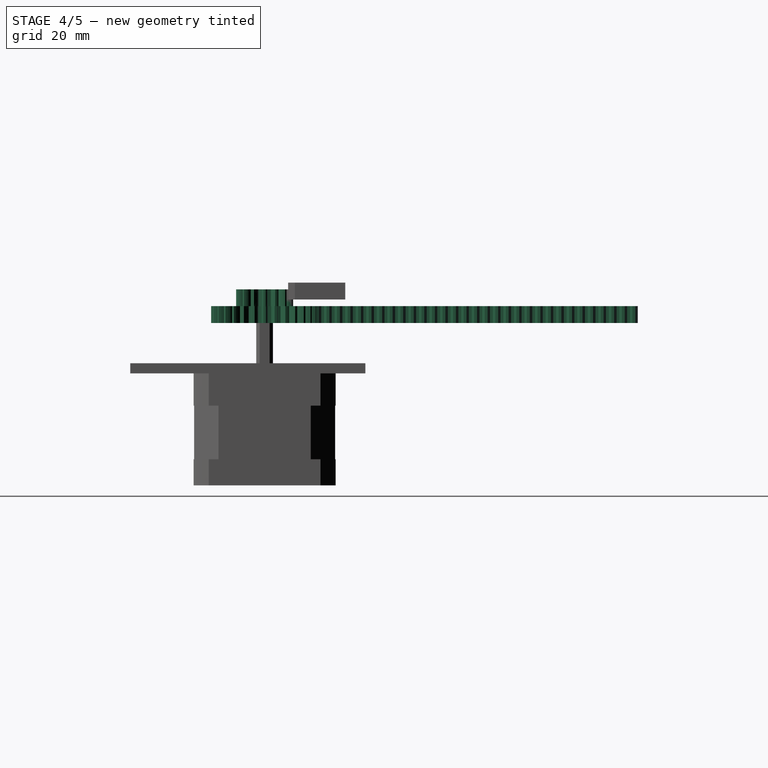
[diagram: stage 4 of 5 — right view after this stage's code; geometry added in this stage tinted green]
FEATURE [Part::Cut] Cut004  label="gears line"
  Base = -> Cut003
  Placement = pos=(22.5,-8,6) rot=(0,0,1;1.5708rad)
  Tool = -> Cylinder003
FEATURE [Part::FeaturePython] InvoluteGear  # WARN: FeaturePython — macro-defined, semantics opaque (R4)
  backlash = 0
  beta = 0
  clearance = 0.25
  double_helix = false
  dw = 15
  head = 0
  height = 5
  module = 1
  numpoints = 6
  pressure_angle = 20
  reversed_backlash = false
  shift = 0
  simple = false
  teeth = 15
  undercut = false
FEATURE [Part::Cut] Cut002  label="gears without cylinder"
  Base = -> InvoluteGear
  Tool = -> Fusion001005
FEATURE [App::FeaturePython] SetupSheet  # Path/CAM operation (typed FeaturePython)
  ClearanceHeightExpression = OpStockZMax+SetupSheet.ClearanceHeightOffset
  ClearanceHeightOffset = 5
  FinalDepthExpression = OpFinalDepth
  HorizRapid = 100
  SafeHeightExpression = OpStockZMax+SetupSheet.SafeHeightOffset
  SafeHeightOffset = 3
  StartDepthExpression = OpStartDepth
  StepDownExpression = OpToolDiameter
  VertRapid = 100
FEATURE [Part::FeaturePython] Clone  label="Model-gears line"  # Draft clone (typed FeaturePython)
  AttacherType = Attacher::AttachEngine3D
  Fuse = false
  Objects = -> [Cut004]
  PathResource = Model
  Scale = (1,1,1)
FEATURE [Path::FeaturePython] T3__laser  label="T3: laser"  # Path/CAM operation (typed FeaturePython)
  HorizFeed = 2
  HorizRapid = 100
  SpindleDir = 0
  SpindleSpeed = 1000
  ToolNumber = 3
  VertFeed = 2
  VertRapid = 100
  expr: HorizRapid = SetupSheet.HorizRapid
  expr: VertRapid = SetupSheet.VertRapid
FEATURE [Path::FeaturePython] Engrave  # Path/CAM operation (typed FeaturePython)
  Active = true
  Base = -> [Cut003,Clone]
  ClearanceHeight = 10
  FinalDepth = 0
  OpFinalDepth = 3
  OpStartDepth = 5
  OpStockZMax = 5
  OpStockZMin = 0
  OpToolDiameter = 0.1
  SafeHeight = 8
  StartDepth = 1
  StartVertex = 0
  StepDown = 2
  ToolController = -> T3__laser
  expr: ClearanceHeight = OpStockZMax + SetupSheet.ClearanceHeightOffset
  expr: SafeHeight = OpStockZMax + SetupSheet.SafeHeightOffset
FEATURE [Path::FeaturePython] Contour  # Path/CAM operation (typed FeaturePython)
  Active = true
  AreaParams:
    Tolerance = 1e-07
    FitArcs = True
    Simplify = False
    CleanDistance = 0.0
    Accuracy = 0.01
    Unit = 1.0
    MinArcPoints = 4
    MaxArcPoints = 100
    ClipperScale = 10000000.0
    Fill = 0
    Coplanar = 2
    Reorient = True
    Outline = False
    Explode = False
    OpenMode = 0
    Deflection = 0.01
    SubjectFill = 0
    ClipFill = 0
    Offset = 0.0
    ExtraPass = 0
    Stepover = 0.0
    LastStepover = 0.0
    JoinType = 0
    EndType = 0
    MiterLimit = 2.0
    RoundPrecision = 0.0
    PocketMode = 0
    ToolRadius = 1.0
    PocketExtraOffset = 0.0
    PocketStepover = 0.0
    PocketLastStepover = 0.0
    FromCenter = False
    Angle = 45.0
    AngleShift = 0.0
    Shift = 0.0
    Thicken = False
    SectionCount = -1
    Stepdown = 1.0
    SectionOffset = 0.0
    SectionTolerance = 1e-06
    SectionMode = 2
    Project = False
  ClearanceHeight = 10
  Direction = 0
  FinalDepth = 0
  JoinType = 0
  MiterLimit = 0.1
  OffsetExtra = 0
  OpFinalDepth = 0
  OpStartDepth = 5
  OpStockZMax = 5
  OpStockZMin = 0
  OpToolDiameter = 0.1
  PathParams = {'orientation': 0, 'feedrate': 2.0, 'feedrate_v': 2.0, 'verbose': True, 'resume_height': 8.0, 'retraction': 10.0, 'return_end': True, 'preamble': False}
  SafeHeight = 8
  Side = 0
  StartDepth = 1
  StartPoint = (0,0,0)
  StepDown = 2
  ToolController = -> T3__laser
  UseComp = true
  UseStartPoint = false
  expr: ClearanceHeight = OpStockZMax + SetupSheet.ClearanceHeightOffset
  expr: SafeHeight = OpStockZMax + SetupSheet.SafeHeightOffset
  expr: FinalDepth = OpFinalDepth
FEATURE [Path::FeatureCompoundPython] Operations  # Path/CAM operation (typed FeaturePython)
  Group = -> [Engrave,Contour]
  UsePlacements = false
FEATURE [Path::FeaturePython] Job  label="gear line job"  # Path/CAM operation (typed FeaturePython)
  GeometryTolerance = 0.01
  Model = -> Model
  Operations = -> Operations
  PostProcessor = 1
  PostProcessorOutputFile = <userpath>/work/roborep/gcode
  SetupSheet = -> SetupSheet
  Stock = -> Stock
  ToolController = -> [T3__laser]
FEATURE [App::FeaturePython] SetupSheet001  # Path/CAM operation (typed FeaturePython)
  ClearanceHeightExpression = OpStockZMax+SetupSheet001.ClearanceHeightOffset
  ClearanceHeightOffset = 5
  FinalDepthExpression = OpFinalDepth
  HorizRapid = 200
  SafeHeightExpression = OpStockZMax+SetupSheet001.SafeHeightOffset
  SafeHeightOffset = 3
  StartDepthExpression = OpStartDepth
  StepDownExpression = OpToolDiameter
  VertRapid = 200
FEATURE [Part::FeaturePython] Clone001  label="Model-gears without cylinder"  # Draft clone (typed FeaturePython)
  AttacherType = Attacher::AttachEngine3D
  Fuse = false
  Objects = -> [Cut002]
  PathResource = Model
  Scale = (1,1,1)
FEATURE [App::DocumentObjectGroup] Model001
  Group = -> [Clone001]
FEATURE [Part::FeaturePython] Stock001  # WARN: FeaturePython — macro-defined, semantics opaque (R4)
  Base = -> Model001
  ExtXneg = 1
  ExtXpos = 1
  ExtYneg = 1
  ExtYpos = 1
  ExtZneg = 0
  ExtZpos = 0
  Placement = pos=(-8.37628,-8.48143,0) rot=(0,0,1;0rad)
  StockType = FromBase
FEATURE [Path::FeaturePython] T3__laser002  label="T3: laser002"  # Path/CAM operation (typed FeaturePython)
  HorizFeed = 2
  HorizRapid = 200
  SpindleDir = 0
  SpindleSpeed = 1000
  ToolNumber = 3
  VertFeed = 2
  VertRapid = 200
  expr: HorizRapid = SetupSheet001.HorizRapid
  expr: VertRapid = SetupSheet001.VertRapid
FEATURE [Path::FeaturePython] Engrave001  # Path/CAM operation (typed FeaturePython)
  Active = true
  Base = -> [Clone001]
  ClearanceHeight = 10
  FinalDepth = 0
  OpFinalDepth = 3
  OpStartDepth = 5
  OpStockZMax = 5
  OpStockZMin = 0
  OpToolDiameter = 0.5
  SafeHeight = 8
  StartDepth = 1
  StartVertex = 0
  StepDown = 2
  ToolController = -> T3__laser002
  expr: ClearanceHeight = OpStockZMax + SetupSheet001.ClearanceHeightOffset
  expr: SafeHeight = OpStockZMax + SetupSheet001.SafeHeightOffset
FEATURE [Path::FeaturePython] Contour001  # Path/CAM operation (typed FeaturePython)
  Active = true
  AreaParams:
    Tolerance = 1e-07
    FitArcs = True
    Simplify = False
    CleanDistance = 0.0
    Accuracy = 0.01
    Unit = 1.0
    MinArcPoints = 4
    MaxArcPoints = 100
    ClipperScale = 10000000.0
    Fill = 0
    Coplanar = 2
    Reorient = True
    Outline = False
    Explode = False
    OpenMode = 0
    Deflection = 0.01
    SubjectFill = 0
    ClipFill = 0
    Offset = 0.25
    ExtraPass = 0
    Stepover = 0.0
    LastStepover = 0.0
    JoinType = 0
    EndType = 0
    MiterLimit = 2.0
    RoundPrecision = 0.0
    PocketMode = 0
    ToolRadius = 1.0
    PocketExtraOffset = 0.0
    PocketStepover = 0.0
    PocketLastStepover = 0.0
    FromCenter = False
    Angle = 45.0
    AngleShift = 0.0
    Shift = 0.0
    Thicken = False
    SectionCount = -1
    Stepdown = 1.0
    SectionOffset = 0.0
    SectionTolerance = 1e-06
    SectionMode = 2
    Project = False
  ClearanceHeight = 10
  Direction = 0
  FinalDepth = 0
  JoinType = 0
  MiterLimit = 0.1
  OffsetExtra = 0
  OpFinalDepth = 0
  OpStartDepth = 5
  OpStockZMax = 5
  OpStockZMin = 0
  OpToolDiameter = 0.5
  PathParams = {'orientation': 1, 'feedrate': 2.0, 'feedrate_v': 2.0, 'verbose': True, 'resume_height': 8.0, 'retraction': 10.0, 'return_end': True, 'preamble': False}
  SafeHeight = 8
  Side = 0
  StartDepth = 1
  StartPoint = (0,0,0)
  StepDown = 2
  ToolController = -> T3__laser002
  UseComp = true
  UseStartPoint = false
  expr: ClearanceHeight = OpStockZMax + SetupSheet001.ClearanceHeightOffset
  expr: SafeHeight = OpStockZMax + SetupSheet001.SafeHeightOffset
  expr: FinalDepth = OpFinalDepth
FEATURE [Path::FeatureCompoundPython] Operations001  # Path/CAM operation (typed FeaturePython)
  Group = -> [Engrave001,Contour001]
  UsePlacements = false
FEATURE [Path::FeaturePython] Job001  label="gears without cylinder job"  # Path/CAM operation (typed FeaturePython)
  GeometryTolerance = 0.01
  Model = -> Model001
  Operations = -> Operations001
  PostProcessor = 1
  PostProcessorOutputFile = <userpath>/work/roborep/gcode
  SetupSheet = -> SetupSheet001
  Stock = -> Stock001
  ToolController = -> [T3__laser002]
FEATURE [Part::FeaturePython] InvoluteGear001  # WARN: FeaturePython — macro-defined, semantics opaque (R4)
  Placement = pos=(0,0,5) rot=(0,0,1;0rad)
  backlash = 0
  beta = 0
  clearance = 0.25
  double_helix = false
  dw = 15
  head = 0
  height = 5
  module = 1
  numpoints = 6
  pressure_angle = 20
  reversed_backlash = false
  shift = 0
  simple = false
  teeth = 15
  undercut = false
FEATURE [Part::FeaturePython] InvoluteGear002  # WARN: FeaturePython — macro-defined, semantics opaque (R4)
  backlash = 0
  beta = 0
  clearance = 0.25
  double_helix = false
  dw = 30
  head = 0
  height = 5
  module = 1
  numpoints = 6
  pressure_angle = 20
  reversed_backlash = false
  shift = 0
  simple = false
  teeth = 30
  undercut = false
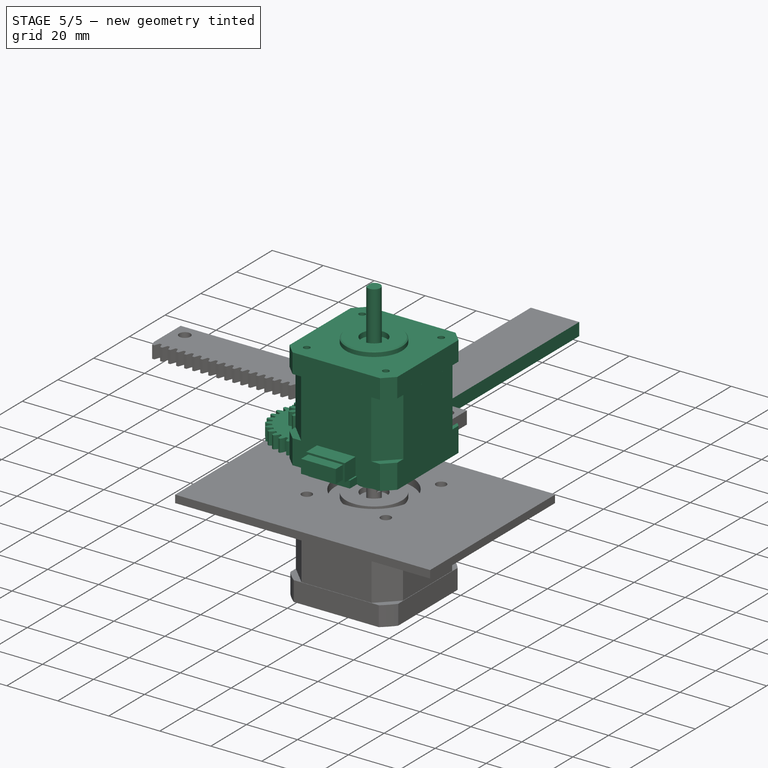
[diagram: stage 5 of 5 — iso view after this stage's code; geometry added in this stage tinted green]
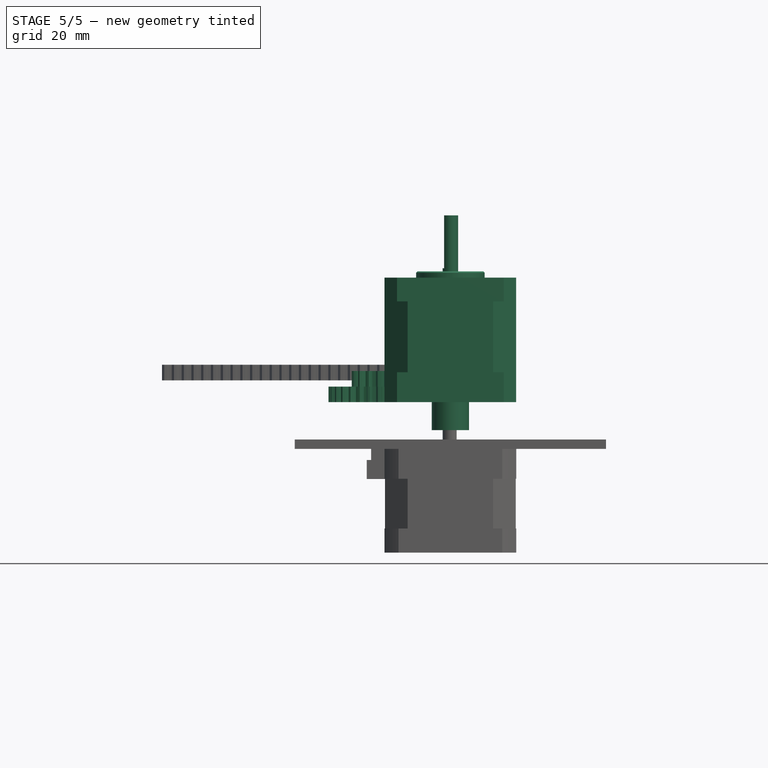
[diagram: stage 5 of 5 — front view after this stage's code; geometry added in this stage tinted green]
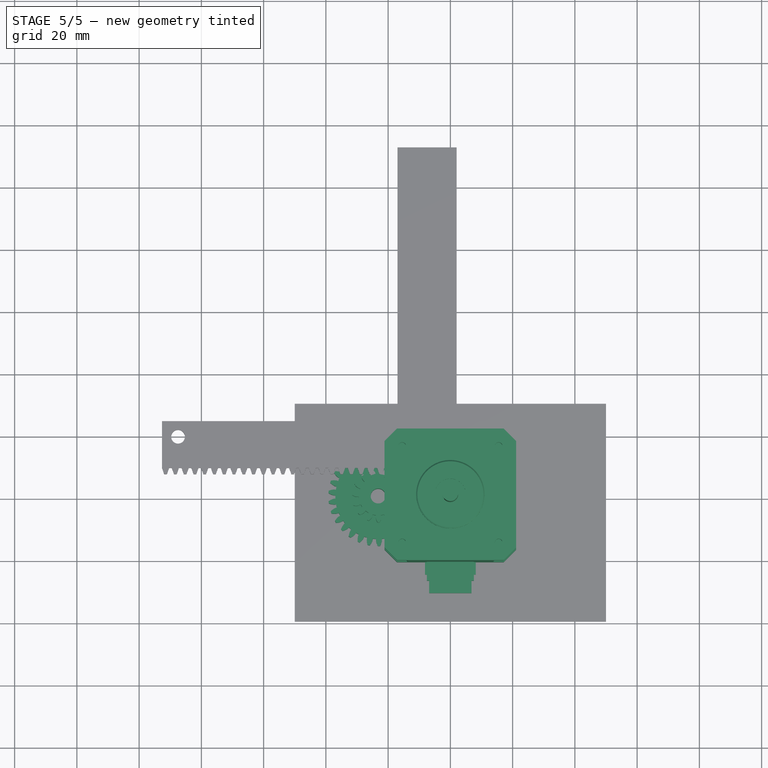
[diagram: stage 5 of 5 — top view after this stage's code; geometry added in this stage tinted green]
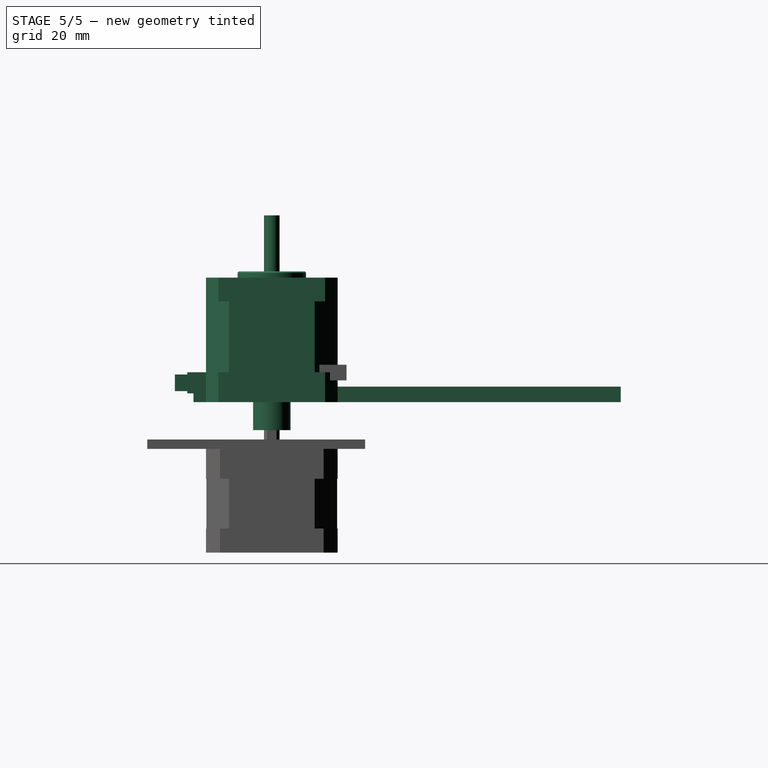
[diagram: stage 5 of 5 — right view after this stage's code; geometry added in this stage tinted green]
FEATURE [Part::Compound] Compound  label="extruder-motor"
  Placement = pos=(109.65,-100.5,-442) rot=(0,0,1;0rad)
FEATURE [App::DocumentObjectGroup] Group  label="connector-src"
  Group = -> [Array]
FEATURE [Part::Feature] Fusion001001  label="Motor-with-connector-final"
  Placement = pos=(0,0,-53) rot=(0,0,1;0rad)
  shape: bbox 48 x 42.3 x 60.1 mm, 110 faces (baked)
FEATURE [Part::Cylinder] Cylinder
  Angle = 360
  AttacherType = Attacher::AttachEngine3D
  Height = 25
  Placement = pos=(0,0,-10) rot=(0,0,1;0rad)
  Radius = 2.4
FEATURE [Part::Cylinder] Cylinder001
  Angle = 360
  AttacherType = Attacher::AttachEngine3D
  Height = 14
  Placement = pos=(0,0,-9) rot=(0,0,1;0rad)
  Radius = 6
FEATURE [Part::MultiFuse] Fusion001003  label="shaft gear block"
  Shapes = -> [InvoluteGear,Cylinder001]
FEATURE [Part::Cut] Cut001  label="stepper_gear"
  Base = -> Fusion001003
  Placement = pos=(0,0,0) rot=(0,0,1;3.10669rad)
  Tool = -> Fusion001001
FEATURE [App::DocumentObjectGroup] Model
  Group = -> [Clone]
FEATURE [Part::FeaturePython] Stock  # WARN: FeaturePython — macro-defined, semantics opaque (R4)
  Base = -> Model
  ExtXneg = 1
  ExtXpos = 1
  ExtYneg = 1
  ExtYpos = 1
  ExtZneg = 0
  ExtZpos = 0
  Placement = pos=(-16,-1.14937,0) rot=(0,0,1;0rad)
  StockType = FromBase
FEATURE [Part::MultiFuse] Fusion001002
  Shapes = -> [InvoluteGear001,InvoluteGear002]
FEATURE [Part::Cut] Cut  label="gears pair"
  Base = -> Fusion001002
  Placement = pos=(-23.2,0,0) rot=(0,0,1;0.122173rad)
  Tool = -> Cylinder
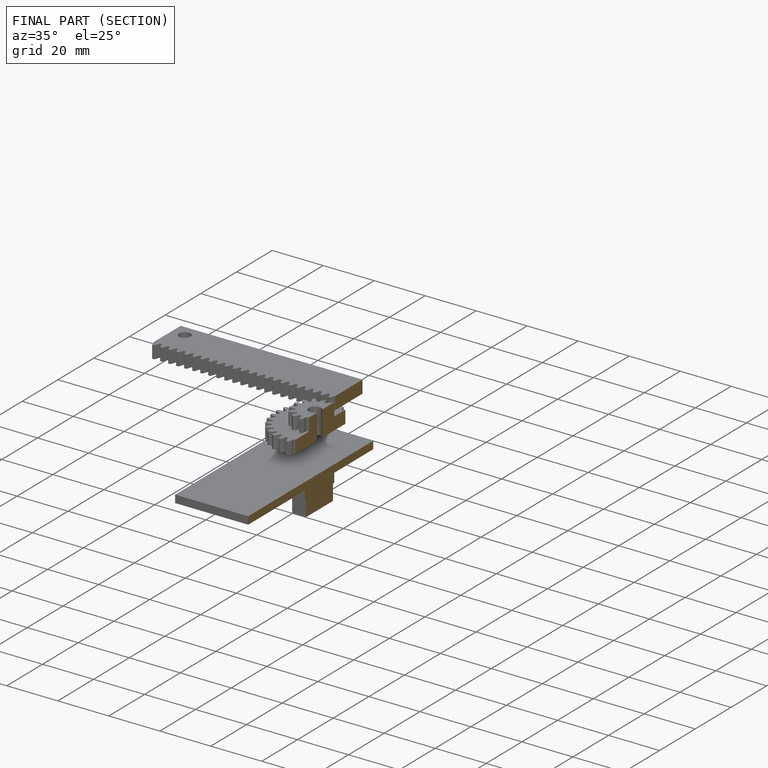
[diagram: finished part — half-section view (interior)]
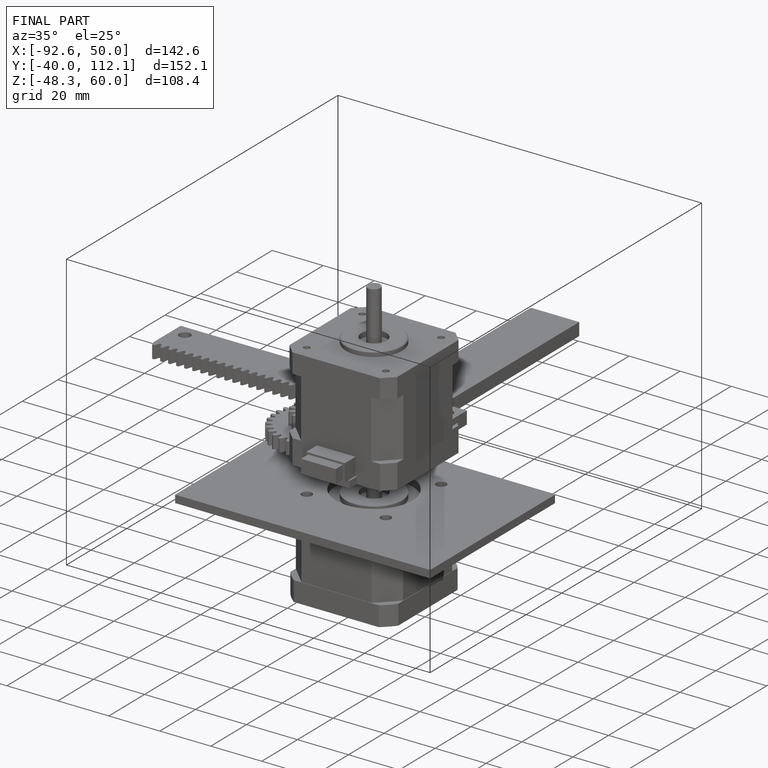
[diagram: finished part — iso view with bounding-box wireframe]
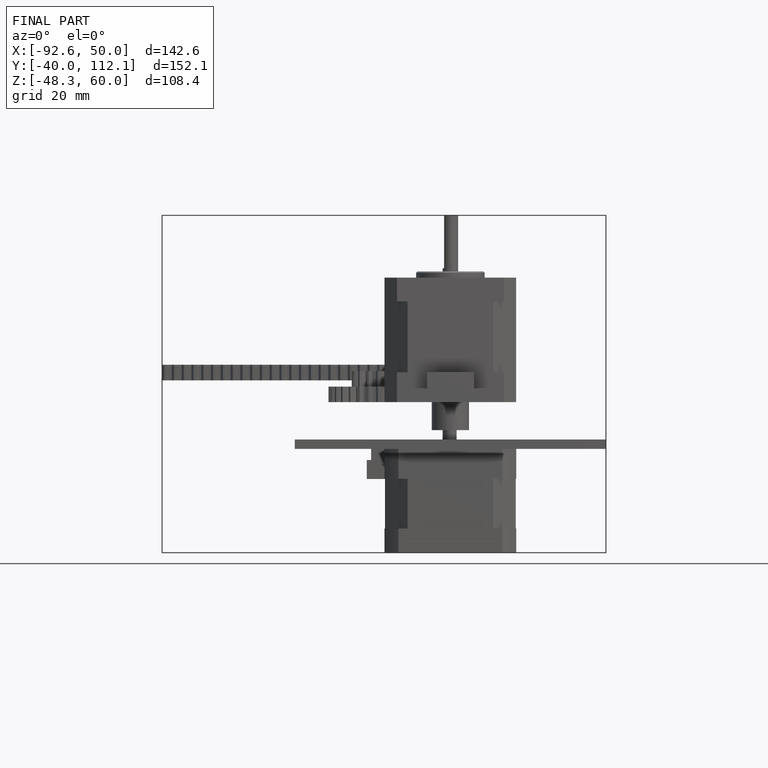
[diagram: finished part — front view with bounding-box wireframe]
